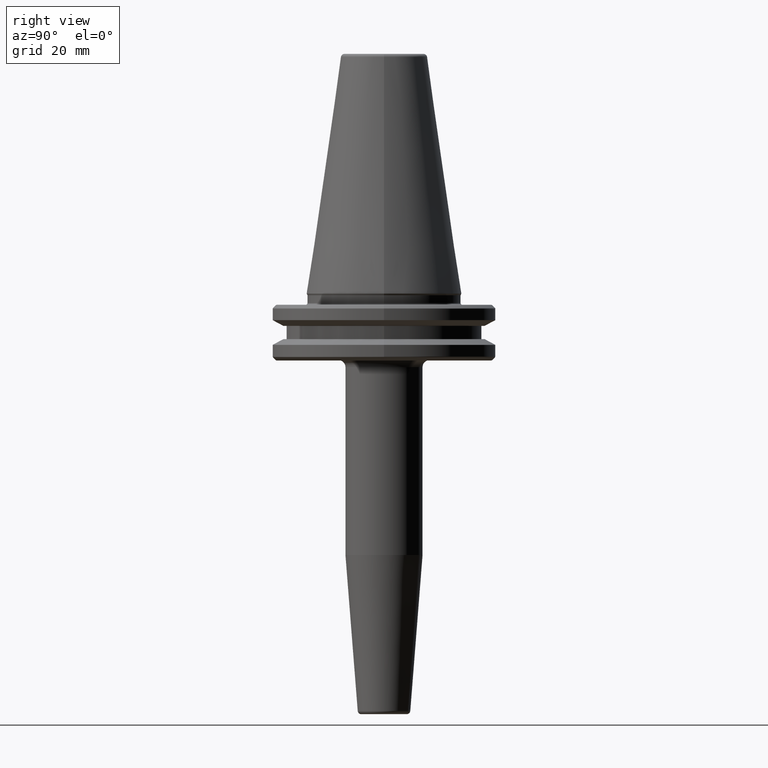
[diagram: clean part render]
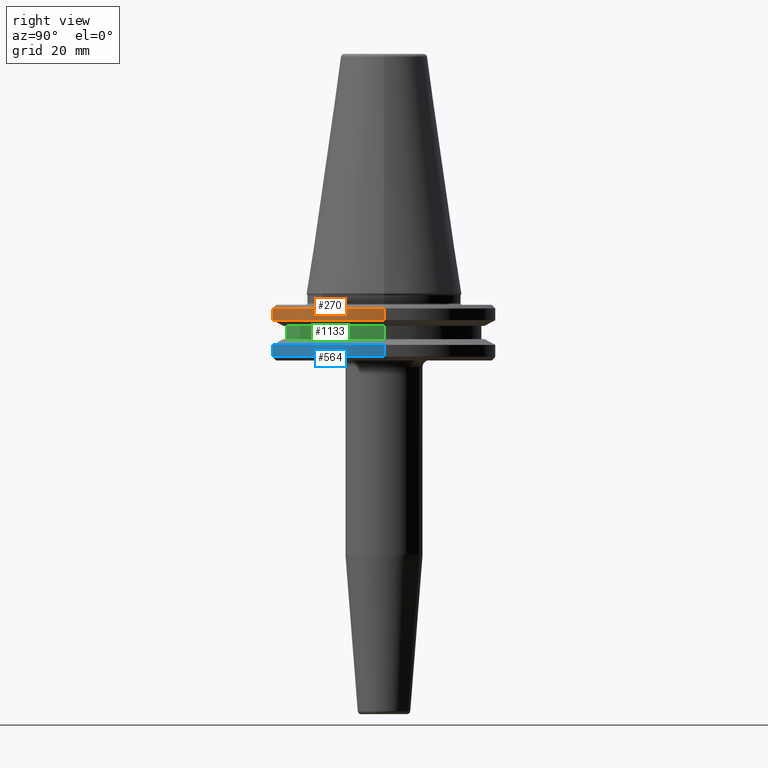
[diagram: same view with three faces highlighted in distinct colors, each labeled with its STEP entity id]
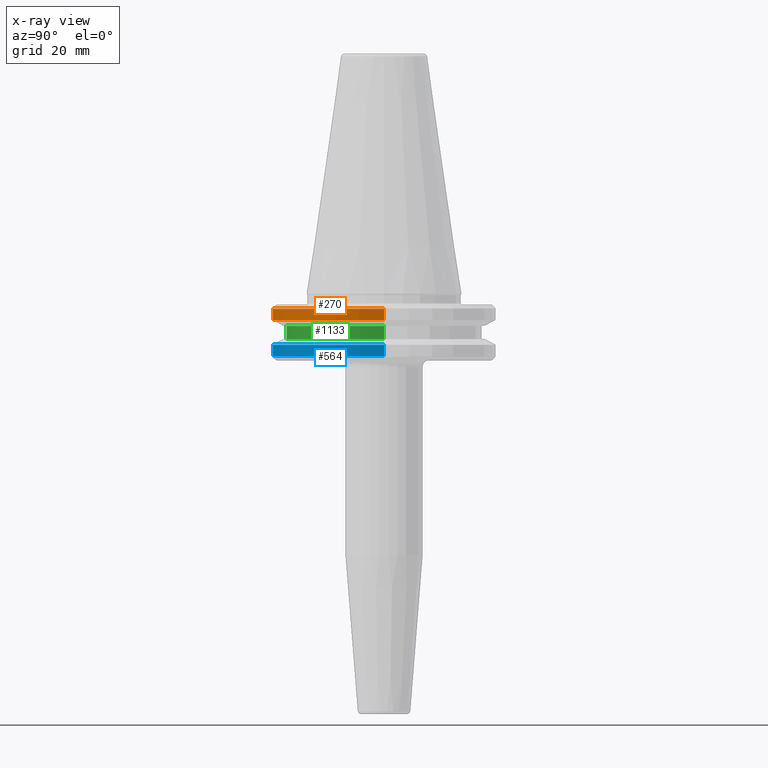
[diagram: x-ray of the same camera — body ghosted, the three highlighted faces saturated]
A machine part, right view with three faces highlighted in distinct colors.
The next image is the same camera in x-ray (body ghosted, the three faces saturated) — at least one of them is partly hidden behind the body in this view.
Their STEP definitions:

[orange] entity #270 — the highlighted cylindrical surface (partial cylindrical patch) has radius 31.75 mm, axis along (-0, -0, 1).
#8 = ORIENTED_EDGE ( 'NONE', *, *, #697, .T. ) ;
#16 = DIRECTION ( 'NONE',  ( -0.0000000000000000000, -0.0000000000000000000, 1.000000000000000000 ) ) ;
#55 = EDGE_LOOP ( 'NONE', ( #461, #1234, #8, #1251 ) ) ;
#102 = DIRECTION ( 'NONE',  ( -0.0000000000000000000, -0.0000000000000000000, 1.000000000000000000 ) ) ;
#123 = LINE ( 'NONE', #1123, #828 ) ;
#124 = CYLINDRICAL_SURFACE ( 'NONE', #1202, 31.75000000000000000 ) ;
#148 = DIRECTION ( 'NONE',  ( -0.0000000000000000000, -0.0000000000000000000, 1.000000000000000000 ) ) ;
#236 = CARTESIAN_POINT ( 'NONE',  ( 31.75000000000000000, 0.0000000000000000000, -4.365685424949250000 ) ) ;
#270 = ADVANCED_FACE ( 'NONE', ( #1147 ), #124, .T. ) ;
#277 = CARTESIAN_POINT ( 'NONE',  ( 0.0000000000000000000, 0.0000000000000000000, -7.578163357943284800 ) ) ;
#331 = VERTEX_POINT ( 'NONE', #977 ) ;
#360 = VERTEX_POINT ( 'NONE', #236 ) ;
#381 = DIRECTION ( 'NONE',  ( 1.000000000000000000, 0.0000000000000000000, 0.0000000000000000000 ) ) ;
#439 = EDGE_CURVE ( 'NONE', #736, #671, #581, .T. ) ;
#461 = ORIENTED_EDGE ( 'NONE', *, *, #439, .F. ) ;
#466 = DIRECTION ( 'NONE',  ( -0.0000000000000000000, -0.0000000000000000000, 1.000000000000000000 ) ) ;
#581 = LINE ( 'NONE', #1075, #769 ) ;
#629 = EDGE_CURVE ( 'NONE', #671, #360, #1183, .T. ) ;
#641 = CARTESIAN_POINT ( 'NONE',  ( -31.75000000000000000, 3.888253587292846500E-015, -4.365685424949250000 ) ) ;
#671 = VERTEX_POINT ( 'NONE', #641 ) ;
#697 = EDGE_CURVE ( 'NONE', #331, #360, #123, .T. ) ;
#728 = CARTESIAN_POINT ( 'NONE',  ( 0.0000000000000000000, 0.0000000000000000000, -4.365685424949250000 ) ) ;
#736 = VERTEX_POINT ( 'NONE', #932 ) ;
#769 = VECTOR ( 'NONE', #16, 1000.000000000000000 ) ;
#822 = DIRECTION ( 'NONE',  ( 1.000000000000000000, 0.0000000000000000000, 0.0000000000000000000 ) ) ;
#828 = VECTOR ( 'NONE', #466, 1000.000000000000000 ) ;
#867 = CARTESIAN_POINT ( 'NONE',  ( 0.0000000000000000000, 0.0000000000000000000, 113.5216080541959500 ) ) ;
#901 = CIRCLE ( 'NONE', #1158, 31.75000000000000000 ) ;
#926 = AXIS2_PLACEMENT_3D ( 'NONE', #728, #148, #822 ) ;
#932 = CARTESIAN_POINT ( 'NONE',  ( -31.75000000000000000, 3.888253587292846500E-015, -7.578163357943284800 ) ) ;
#947 = DIRECTION ( 'NONE',  ( -0.0000000000000000000, -0.0000000000000000000, 1.000000000000000000 ) ) ;
#977 = CARTESIAN_POINT ( 'NONE',  ( 31.75000000000000000, 0.0000000000000000000, -7.578163357943284800 ) ) ;
#1041 = EDGE_CURVE ( 'NONE', #736, #331, #901, .T. ) ;
#1075 = CARTESIAN_POINT ( 'NONE',  ( -31.75000000000000000, 3.888253587292846500E-015, 113.5216080541959500 ) ) ;
#1123 = CARTESIAN_POINT ( 'NONE',  ( 31.75000000000000000, 0.0000000000000000000, 113.5216080541959500 ) ) ;
#1147 = FACE_OUTER_BOUND ( 'NONE', #55, .T. ) ;
#1158 = AXIS2_PLACEMENT_3D ( 'NONE', #277, #947, #381 ) ;
#1166 = DIRECTION ( 'NONE',  ( 1.000000000000000000, 0.0000000000000000000, 0.0000000000000000000 ) ) ;
#1183 = CIRCLE ( 'NONE', #926, 31.75000000000000000 ) ;
#1202 = AXIS2_PLACEMENT_3D ( 'NONE', #867, #102, #1166 ) ;
#1234 = ORIENTED_EDGE ( 'NONE', *, *, #1041, .T. ) ;
#1251 = ORIENTED_EDGE ( 'NONE', *, *, #629, .F. ) ;

[blue] entity #564 — the highlighted cylindrical surface (partial cylindrical patch) has radius 31.75 mm, axis along (-0, -0, 1).
#15 = CARTESIAN_POINT ( 'NONE',  ( -31.75000000000000000, 3.888253587292846500E-015, -14.62183664205671200 ) ) ;
#39 = VERTEX_POINT ( 'NONE', #969 ) ;
#54 = DIRECTION ( 'NONE',  ( -0.0000000000000000000, -0.0000000000000000000, 1.000000000000000000 ) ) ;
#65 = CARTESIAN_POINT ( 'NONE',  ( 0.0000000000000000000, 0.0000000000000000000, 113.5216080541959500 ) ) ;
#125 = VERTEX_POINT ( 'NONE', #15 ) ;
#143 = DIRECTION ( 'NONE',  ( -0.0000000000000000000, -0.0000000000000000000, 1.000000000000000000 ) ) ;
#275 = EDGE_CURVE ( 'NONE', #833, #125, #885, .T. ) ;
#349 = CARTESIAN_POINT ( 'NONE',  ( 0.0000000000000000000, 0.0000000000000000000, -14.62183664205671200 ) ) ;
#386 = VECTOR ( 'NONE', #54, 1000.000000000000000 ) ;
#393 = ORIENTED_EDGE ( 'NONE', *, *, #635, .F. ) ;
#407 = CARTESIAN_POINT ( 'NONE',  ( 31.75000000000000000, 0.0000000000000000000, -17.93431457505076300 ) ) ;
#428 = EDGE_LOOP ( 'NONE', ( #594, #762, #620, #393 ) ) ;
#454 = DIRECTION ( 'NONE',  ( 1.000000000000000000, 0.0000000000000000000, 0.0000000000000000000 ) ) ;
#458 = AXIS2_PLACEMENT_3D ( 'NONE', #65, #565, #739 ) ;
#564 = ADVANCED_FACE ( 'NONE', ( #796 ), #1244, .T. ) ;
#565 = DIRECTION ( 'NONE',  ( -0.0000000000000000000, -0.0000000000000000000, 1.000000000000000000 ) ) ;
#591 = EDGE_CURVE ( 'NONE', #833, #1190, #950, .T. ) ;
#594 = ORIENTED_EDGE ( 'NONE', *, *, #275, .F. ) ;
#601 = DIRECTION ( 'NONE',  ( -0.0000000000000000000, -0.0000000000000000000, 1.000000000000000000 ) ) ;
#620 = ORIENTED_EDGE ( 'NONE', *, *, #678, .T. ) ;
#630 = CARTESIAN_POINT ( 'NONE',  ( -31.75000000000000000, 3.888253587292846500E-015, -17.93431457505076300 ) ) ;
#635 = EDGE_CURVE ( 'NONE', #125, #39, #919, .T. ) ;
#678 = EDGE_CURVE ( 'NONE', #1190, #39, #853, .T. ) ;
#721 = CARTESIAN_POINT ( 'NONE',  ( 0.0000000000000000000, 0.0000000000000000000, -17.93431457505076300 ) ) ;
#739 = DIRECTION ( 'NONE',  ( 1.000000000000000000, 0.0000000000000000000, 0.0000000000000000000 ) ) ;
#762 = ORIENTED_EDGE ( 'NONE', *, *, #591, .T. ) ;
#793 = AXIS2_PLACEMENT_3D ( 'NONE', #349, #1018, #454 ) ;
#796 = FACE_OUTER_BOUND ( 'NONE', #428, .T. ) ;
#815 = DIRECTION ( 'NONE',  ( 1.000000000000000000, 0.0000000000000000000, 0.0000000000000000000 ) ) ;
#830 = CARTESIAN_POINT ( 'NONE',  ( 31.75000000000000000, 0.0000000000000000000, 113.5216080541959500 ) ) ;
#833 = VERTEX_POINT ( 'NONE', #630 ) ;
#853 = LINE ( 'NONE', #830, #386 ) ;
#885 = LINE ( 'NONE', #989, #1119 ) ;
#897 = AXIS2_PLACEMENT_3D ( 'NONE', #721, #143, #815 ) ;
#919 = CIRCLE ( 'NONE', #793, 31.75000000000000000 ) ;
#950 = CIRCLE ( 'NONE', #897, 31.75000000000000000 ) ;
#969 = CARTESIAN_POINT ( 'NONE',  ( 31.75000000000000000, 0.0000000000000000000, -14.62183664205671200 ) ) ;
#989 = CARTESIAN_POINT ( 'NONE',  ( -31.75000000000000000, 3.888253587292846500E-015, 113.5216080541959500 ) ) ;
#1018 = DIRECTION ( 'NONE',  ( -0.0000000000000000000, -0.0000000000000000000, 1.000000000000000000 ) ) ;
#1119 = VECTOR ( 'NONE', #601, 1000.000000000000000 ) ;
#1190 = VERTEX_POINT ( 'NONE', #407 ) ;
#1244 = CYLINDRICAL_SURFACE ( 'NONE', #458, 31.75000000000000000 ) ;

[green] entity #1133 — the highlighted cylindrical surface (partial cylindrical patch) has radius 28 mm, axis along (-0, -0, 1).
#18 = DIRECTION ( 'NONE',  ( 1.000000000000000000, 0.0000000000000000000, 0.0000000000000000000 ) ) ;
#27 = VERTEX_POINT ( 'NONE', #765 ) ;
#86 = CARTESIAN_POINT ( 'NONE',  ( -28.00000000000000000, 3.429011037612589300E-015, 113.5216080541959500 ) ) ;
#92 = ORIENTED_EDGE ( 'NONE', *, *, #302, .F. ) ;
#127 = VERTEX_POINT ( 'NONE', #304 ) ;
#188 = DIRECTION ( 'NONE',  ( -0.0000000000000000000, -0.0000000000000000000, 1.000000000000000000 ) ) ;
#231 = ORIENTED_EDGE ( 'NONE', *, *, #1129, .F. ) ;
#245 = CARTESIAN_POINT ( 'NONE',  ( 0.0000000000000000000, 0.0000000000000000000, -13.00000000000001100 ) ) ;
#293 = CYLINDRICAL_SURFACE ( 'NONE', #1122, 28.00000000000000000 ) ;
#302 = EDGE_CURVE ( 'NONE', #420, #27, #583, .T. ) ;
#304 = CARTESIAN_POINT ( 'NONE',  ( -28.00000000000000000, 3.429011037612589300E-015, -13.00000000000001100 ) ) ;
#315 = CARTESIAN_POINT ( 'NONE',  ( 0.0000000000000000000, 0.0000000000000000000, -9.199999999999999300 ) ) ;
#347 = DIRECTION ( 'NONE',  ( 1.000000000000000000, 0.0000000000000000000, 0.0000000000000000000 ) ) ;
#420 = VERTEX_POINT ( 'NONE', #863 ) ;
#493 = DIRECTION ( 'NONE',  ( 1.000000000000000000, 0.0000000000000000000, 0.0000000000000000000 ) ) ;
#531 = ORIENTED_EDGE ( 'NONE', *, *, #613, .T. ) ;
#583 = CIRCLE ( 'NONE', #1082, 28.00000000000000000 ) ;
#586 = LINE ( 'NONE', #86, #832 ) ;
#613 = EDGE_CURVE ( 'NONE', #127, #643, #700, .T. ) ;
#619 = VECTOR ( 'NONE', #1148, 1000.000000000000000 ) ;
#643 = VERTEX_POINT ( 'NONE', #910 ) ;
#667 = DIRECTION ( 'NONE',  ( -0.0000000000000000000, -0.0000000000000000000, 1.000000000000000000 ) ) ;
#700 = CIRCLE ( 'NONE', #838, 28.00000000000000000 ) ;
#765 = CARTESIAN_POINT ( 'NONE',  ( 28.00000000000000000, 0.0000000000000000000, -9.199999999999999300 ) ) ;
#798 = FACE_OUTER_BOUND ( 'NONE', #1204, .T. ) ;
#832 = VECTOR ( 'NONE', #667, 1000.000000000000000 ) ;
#838 = AXIS2_PLACEMENT_3D ( 'NONE', #245, #913, #347 ) ;
#857 = LINE ( 'NONE', #1248, #619 ) ;
#863 = CARTESIAN_POINT ( 'NONE',  ( -28.00000000000000000, 3.429011037612589300E-015, -9.199999999999999300 ) ) ;
#910 = CARTESIAN_POINT ( 'NONE',  ( 28.00000000000000000, 0.0000000000000000000, -13.00000000000001100 ) ) ;
#913 = DIRECTION ( 'NONE',  ( -0.0000000000000000000, -0.0000000000000000000, 1.000000000000000000 ) ) ;
#1048 = ORIENTED_EDGE ( 'NONE', *, *, #1101, .T. ) ;
#1057 = CARTESIAN_POINT ( 'NONE',  ( 0.0000000000000000000, 0.0000000000000000000, 113.5216080541959500 ) ) ;
#1082 = AXIS2_PLACEMENT_3D ( 'NONE', #315, #1179, #18 ) ;
#1101 = EDGE_CURVE ( 'NONE', #643, #27, #857, .T. ) ;
#1122 = AXIS2_PLACEMENT_3D ( 'NONE', #1057, #188, #493 ) ;
#1129 = EDGE_CURVE ( 'NONE', #127, #420, #586, .T. ) ;
#1133 = ADVANCED_FACE ( 'NONE', ( #798 ), #293, .T. ) ;
#1148 = DIRECTION ( 'NONE',  ( -0.0000000000000000000, -0.0000000000000000000, 1.000000000000000000 ) ) ;
#1179 = DIRECTION ( 'NONE',  ( -0.0000000000000000000, -0.0000000000000000000, 1.000000000000000000 ) ) ;
#1204 = EDGE_LOOP ( 'NONE', ( #231, #531, #1048, #92 ) ) ;
#1248 = CARTESIAN_POINT ( 'NONE',  ( 28.00000000000000000, 0.0000000000000000000, 113.5216080541959500 ) ) ;